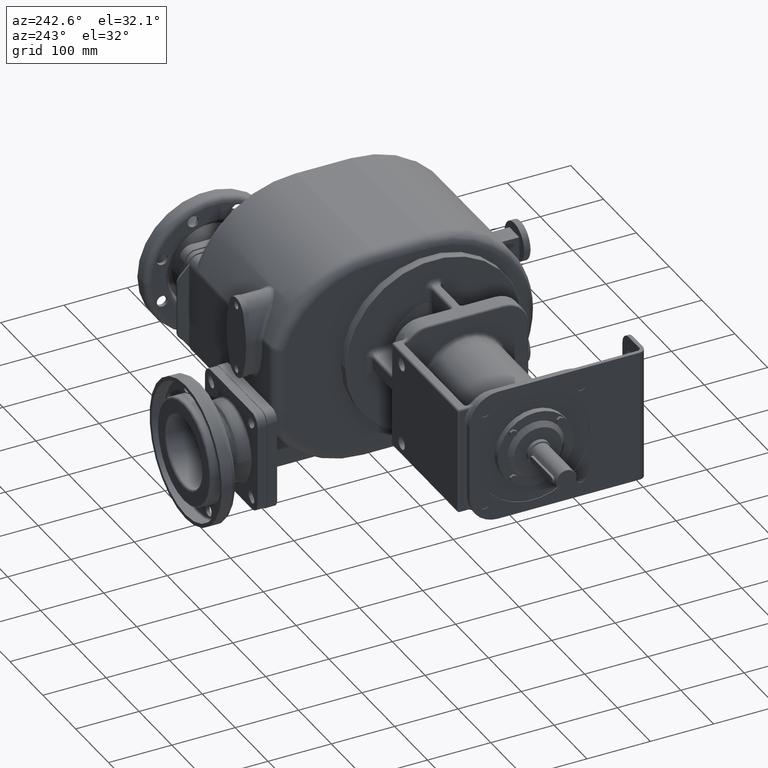
[diagram: clean part render]
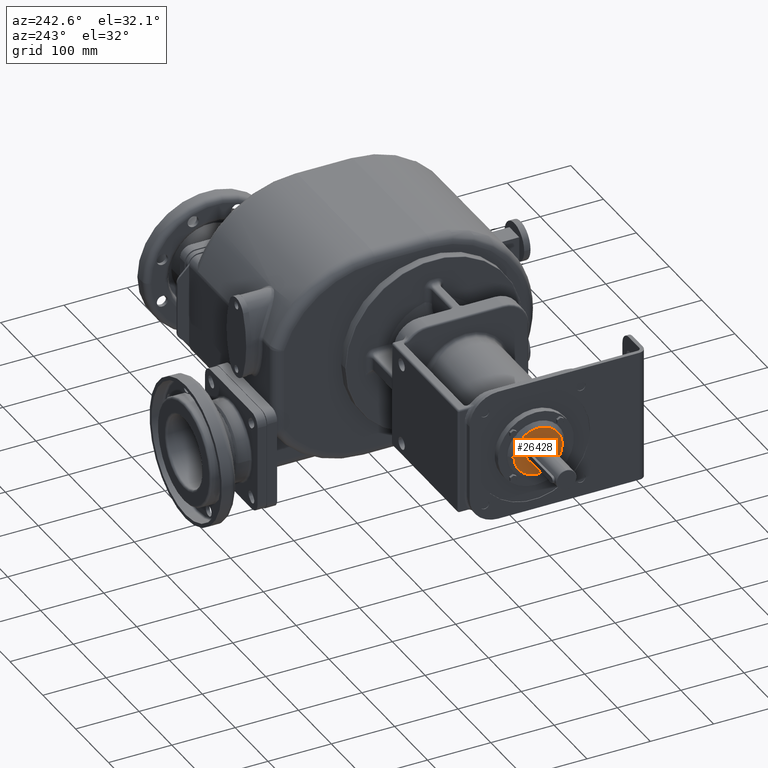
[diagram: same view with one face highlighted and labeled with its STEP entity id]
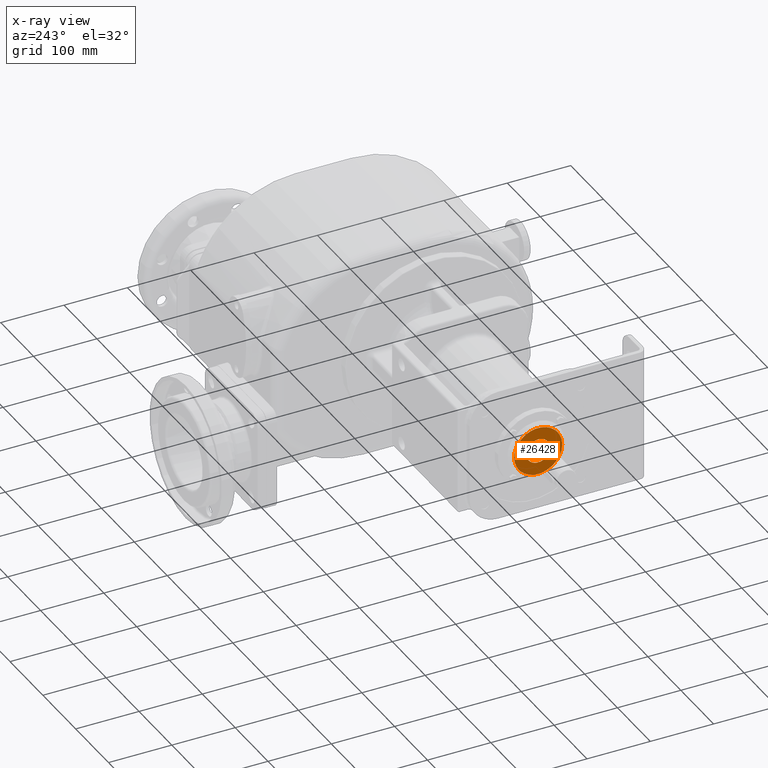
[diagram: x-ray of the same camera — body ghosted, the highlighted face saturated]
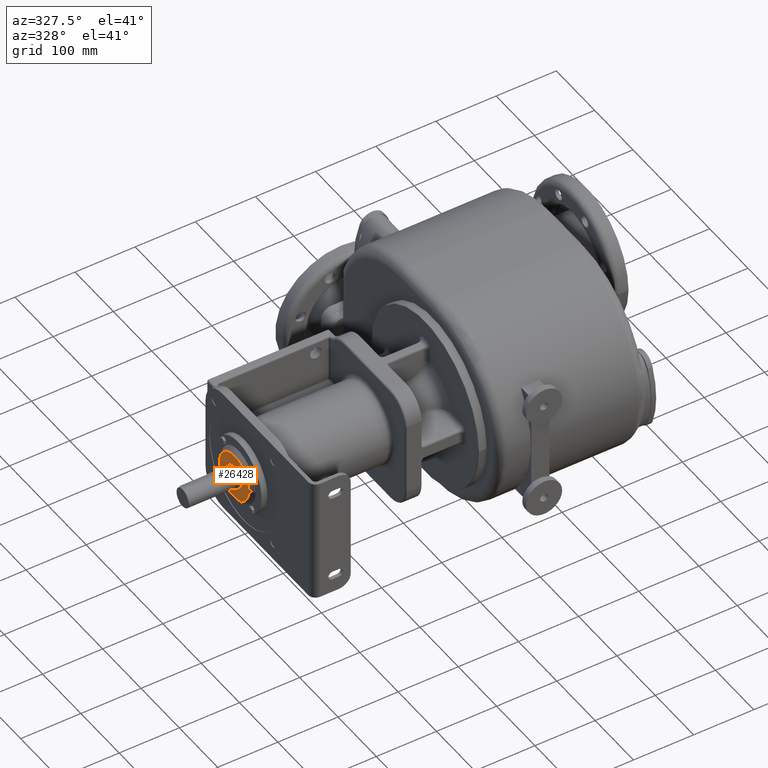
[diagram: same view with one face highlighted and labeled with its STEP entity id]
A machine part, auxiliary view. The second image highlights one B-rep face of the part: STEP entity #26428.
The next image is the same camera in x-ray: the body ghosted, the highlighted face saturated — about 0% of this face is hidden behind the body in this view.
A second angle (auxiliary view) of the same face is appended — the face is thin or edge-on in the first view.
In plain terms, the highlighted planar face has unit normal (-1, 0, 0).
Its self-contained STEP definition (entity closure, byte-faithful):
#10049=CARTESIAN_POINT('',(-4.005E2,1.7E2,-2.991636180774E-14));
#10050=DIRECTION('',(-1.E0,0.E0,0.E0));
#10051=DIRECTION('',(0.E0,-1.E0,0.E0));
#10052=AXIS2_PLACEMENT_3D('',#10049,#10050,#10051);
#10054=CARTESIAN_POINT('',(-4.005E2,1.7E2,0.E0));
#10055=DIRECTION('',(-1.E0,0.E0,0.E0));
#10056=DIRECTION('',(0.E0,1.E0,0.E0));
#10057=AXIS2_PLACEMENT_3D('',#10054,#10055,#10056);
#10059=CARTESIAN_POINT('',(-4.005E2,1.7E2,0.E0));
#10060=DIRECTION('',(1.E0,0.E0,0.E0));
#10061=DIRECTION('',(0.E0,0.E0,1.E0));
#10062=AXIS2_PLACEMENT_3D('',#10059,#10060,#10061);
#10064=CARTESIAN_POINT('',(-4.005E2,1.7E2,0.E0));
#10065=DIRECTION('',(1.E0,0.E0,0.E0));
#10066=DIRECTION('',(0.E0,0.E0,-1.E0));
#10067=AXIS2_PLACEMENT_3D('',#10064,#10065,#10066);
#13723=CARTESIAN_POINT('',(-4.005E2,1.7E2,-1.9E1));
#13724=CARTESIAN_POINT('',(-4.005E2,1.7E2,1.9E1));
#13725=VERTEX_POINT('',#13723);
#13726=VERTEX_POINT('',#13724);
#13735=CARTESIAN_POINT('',(-4.005E2,1.32E2,1.011231839075E-14));
#13736=CARTESIAN_POINT('',(-4.005E2,2.08E2,-1.466521424657E-14));
#13737=VERTEX_POINT('',#13735);
#13738=VERTEX_POINT('',#13736);
#26412=CARTESIAN_POINT('',(-4.005E2,1.7E2,0.E0));
#26413=DIRECTION('',(-1.E0,0.E0,0.E0));
#26414=DIRECTION('',(0.E0,1.E0,0.E0));
#26415=AXIS2_PLACEMENT_3D('',#26412,#26413,#26414);
#26416=PLANE('',#26415);
#26417=ORIENTED_EDGE('',*,*,#26402,.F.);
#26419=ORIENTED_EDGE('',*,*,#26418,.F.);
#26420=EDGE_LOOP('',(#26417,#26419));
#26421=FACE_OUTER_BOUND('',#26420,.F.);
#26423=ORIENTED_EDGE('',*,*,#26422,.F.);
#26425=ORIENTED_EDGE('',*,*,#26424,.F.);
#26426=EDGE_LOOP('',(#26423,#26425));
#26427=FACE_BOUND('',#26426,.F.);
#26428=ADVANCED_FACE('',(#26421,#26427),#26416,.T.);
#10053=CIRCLE('',#10052,3.8E1);
#10058=CIRCLE('',#10057,3.8E1);
#10063=CIRCLE('',#10062,1.9E1);
#10068=CIRCLE('',#10067,1.9E1);
#26402=EDGE_CURVE('',#13737,#13738,#10053,.T.);
#26418=EDGE_CURVE('',#13738,#13737,#10058,.T.);
#26422=EDGE_CURVE('',#13726,#13725,#10063,.T.);
#26424=EDGE_CURVE('',#13725,#13726,#10068,.T.);